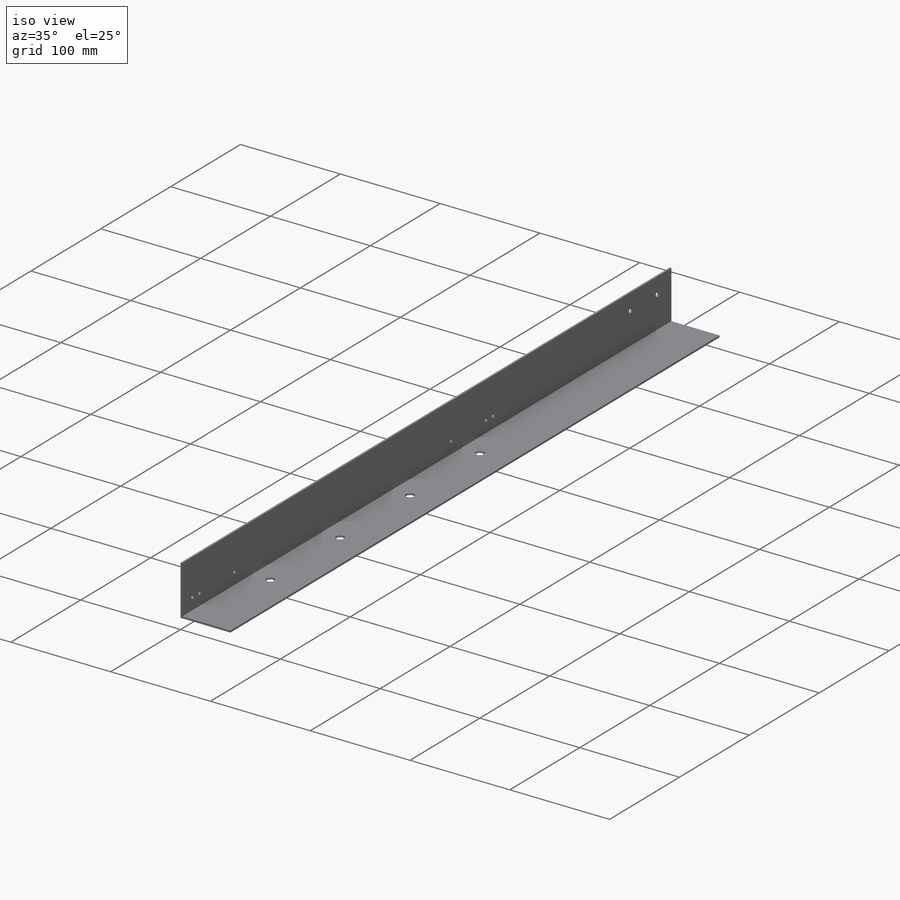
[diagram: iso view]
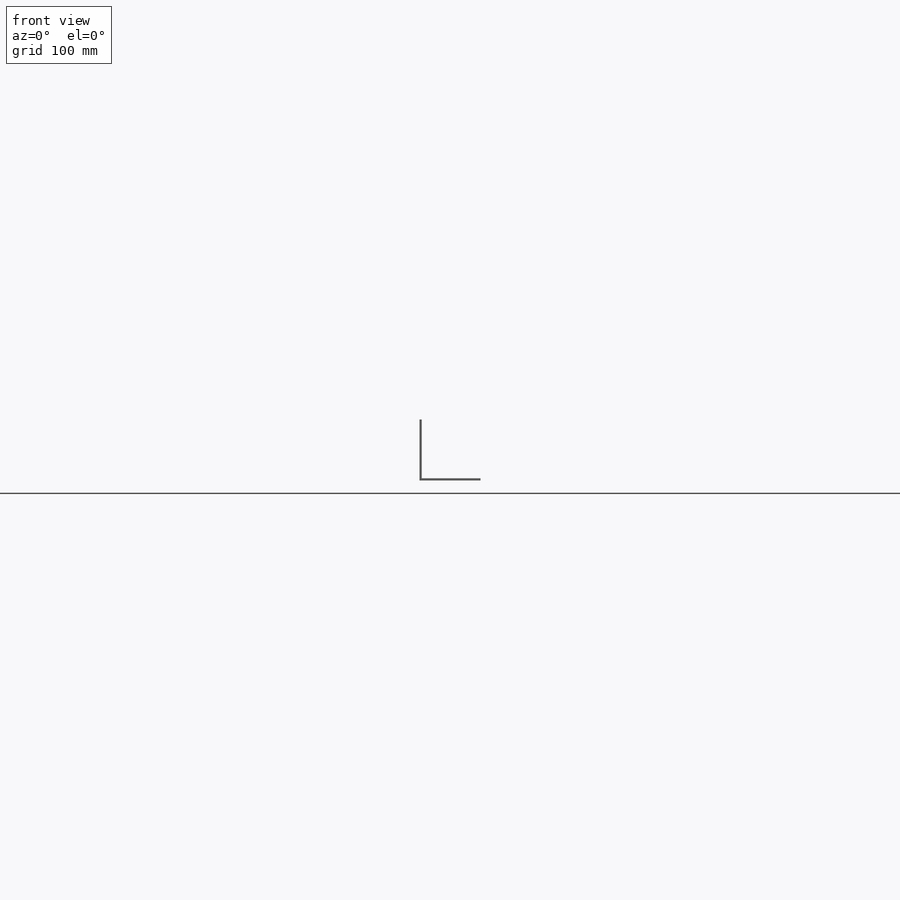
[diagram: front view]
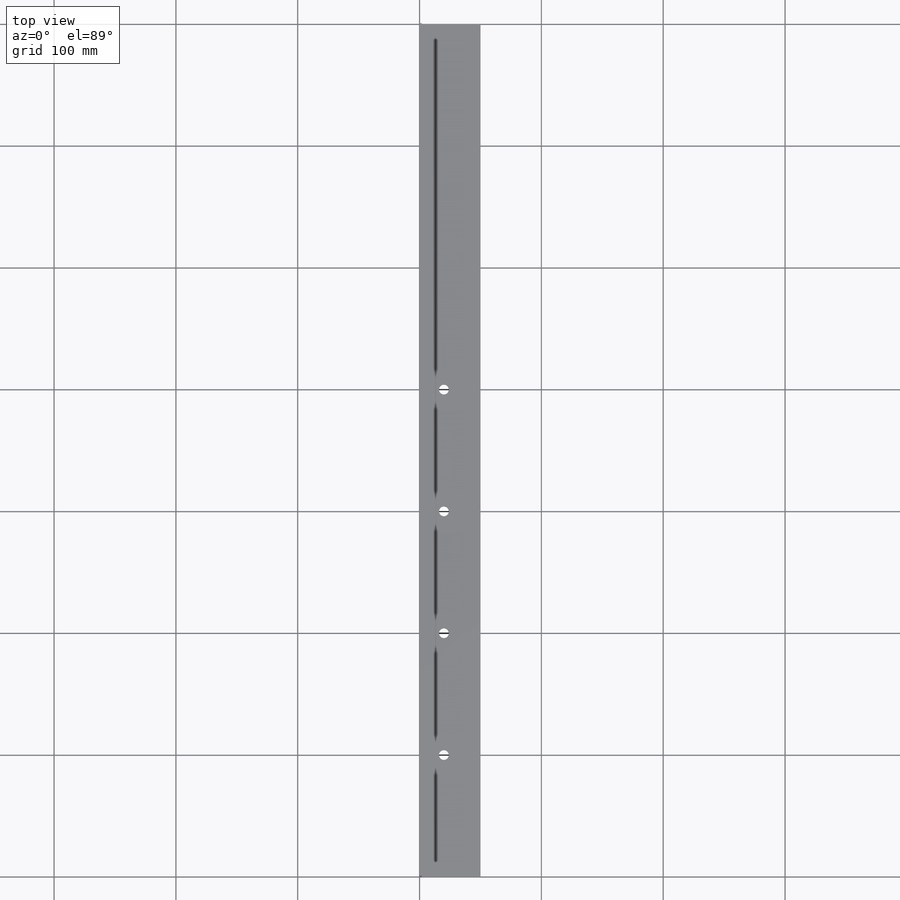
[diagram: top view]
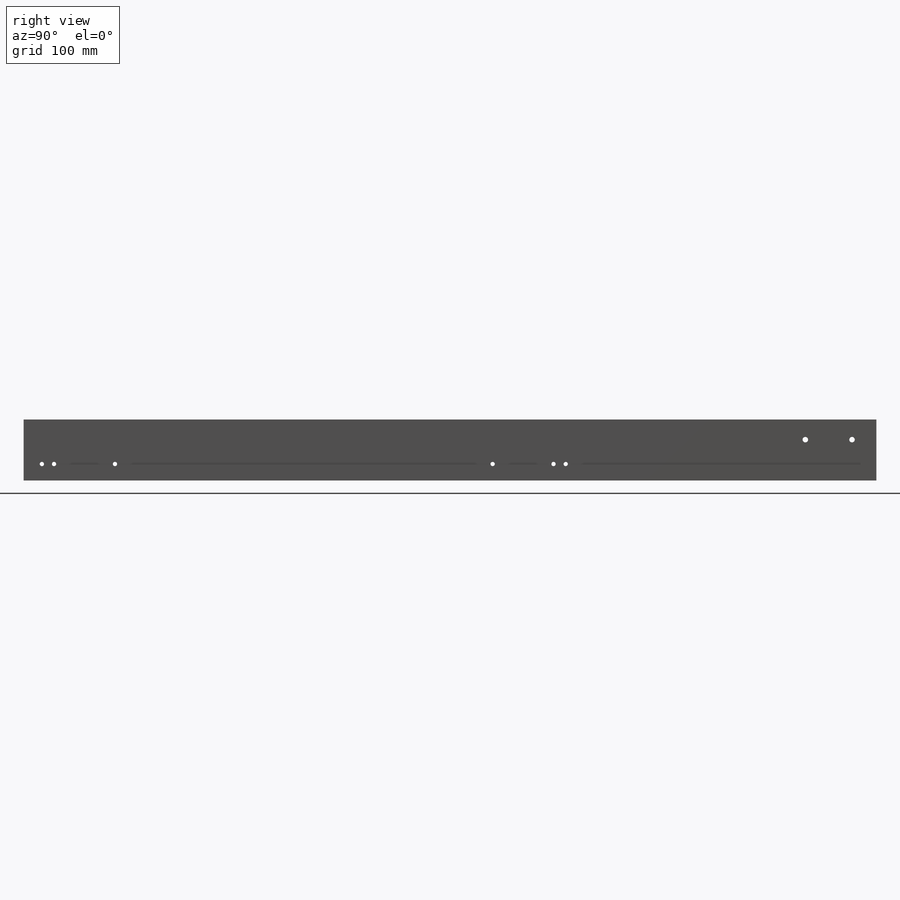
[diagram: right view]
SOLIDWORKS PART (.sldprt)
format: sldprt  version: not decoded by parser v0  size: 241,152 bytes
history: native  units: mm
features: plane x5, sketch x5, cut_extrude x2, material x1, extrude x1, hole x1 (+10 scaffold rows collapsed)
feature tree (25):
  scaffold x10  (default folders/planes/origin — collapsed)
  material  "材質 <未指定>"
  plane  "前基準面"
  plane  "上基準面"
  plane  "右基準面"
  sketch  "草圖1"  dims[D1=50.0mm D2=50.0mm D3=1.8mm D4=1.8mm D5=48.2mm D6=48.2mm]
  extrude  "填料-伸長1"  Depth=700mm
  plane  "平面1"  Offset=0mm
  plane  "平面2"  Offset=0mm
  sketch  "草圖2"  dims[c1.D1=5.0mm c1.D2=10.0mm c1.D3=~1.814393mm c2.D1=5.0mm c2.D4=5.0mm c2.D5=5.0mm c2.D2=22.5mm c2.D3=4.5mm c3.D2=8.0mm c3.D4=8.0mm c3.D8=8.0mm c3.D9=8.0mm c3.D1=25.0mm c3.D3=14.0mm c4.D1=~19.79899mm c4.D6=14.0mm c4.D7=14.0mm c4.D4=750.0mm c5.D7=750.0mm c5.D4=750.0mm c6.D7=30.0mm c6.D8=25.0mm c6.D9=25.0mm c6.D10=11.0mm c6.D11=~750.000006mm c6.D4=745.0mm c6.D1=800.0mm c7.D1=~0.134553deg c8.D1=20.0mm c8.D2=20.0mm c8.D3=20.0mm c8.D5=22.0mm c9.D3=100.0mm c9.D5=400.0mm c9.D6=200.0mm c9.D7=300.0mm]
  cut_extrude  "除料-伸長1"  Depth=10mm
  sketch  "草圖3"  dims[c1.D2=~14.850241mm c1.D4=4.5mm c1.D5=4.5mm c1.D1=13.5mm c2.D2=100.0mm c2.D3=200.0mm c2.D4=300.0mm c2.D5=400.0mm c3.D2=20.0mm c3.D3=38.34mm c3.D1=16.5mm]
  cut_extrude  "除料-伸長2"  [1 undecoded]
  hole  "Ø3.5 (3.5) 直徑孔1"  [1 undecoded]
  sketch  "草圖6"  dims[D1=13.5mm D2=15.0mm D3=10.0mm D4=50.0mm D5=445.0mm D6=50.0mm D7=10.0mm]
  sketch  "草圖5"  dims[hole-wizard template sketch: 46 standard entries collapsed; hole parameters kept: c15.鑽孔直徑=3.5mm c15.鑽孔深度=2.0mm c15.D3=~14.816244mm c15.導頭角度=118.0deg]
decode coverage: 7 of 9 modeling features carry decoded parameters
note: ~ marks probable driven/reference dimensions
note: 2 parameter values undecoded
note: suppression state not decoded; provenance and decode notes live in map.json
